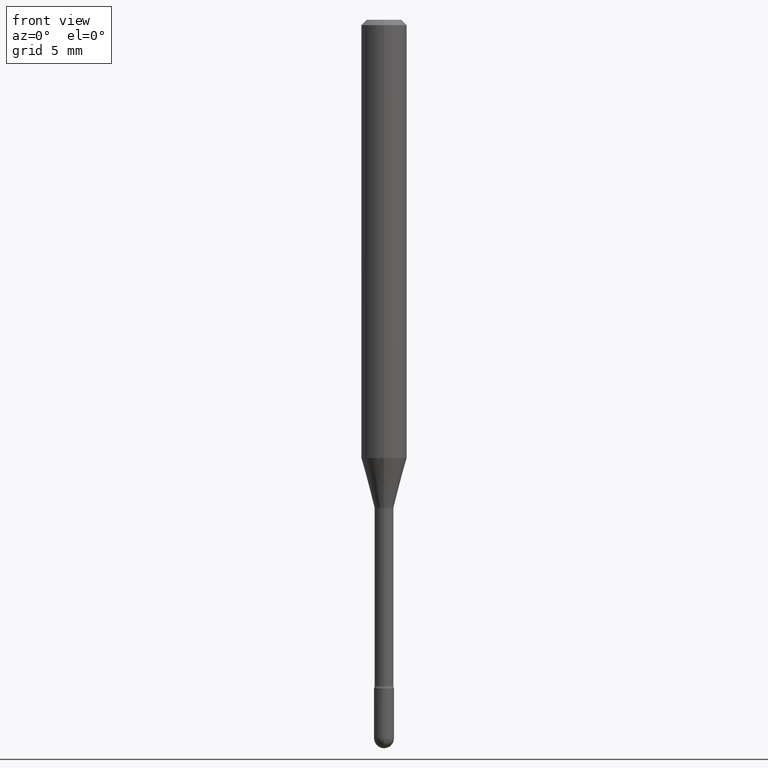
[diagram: clean part render]
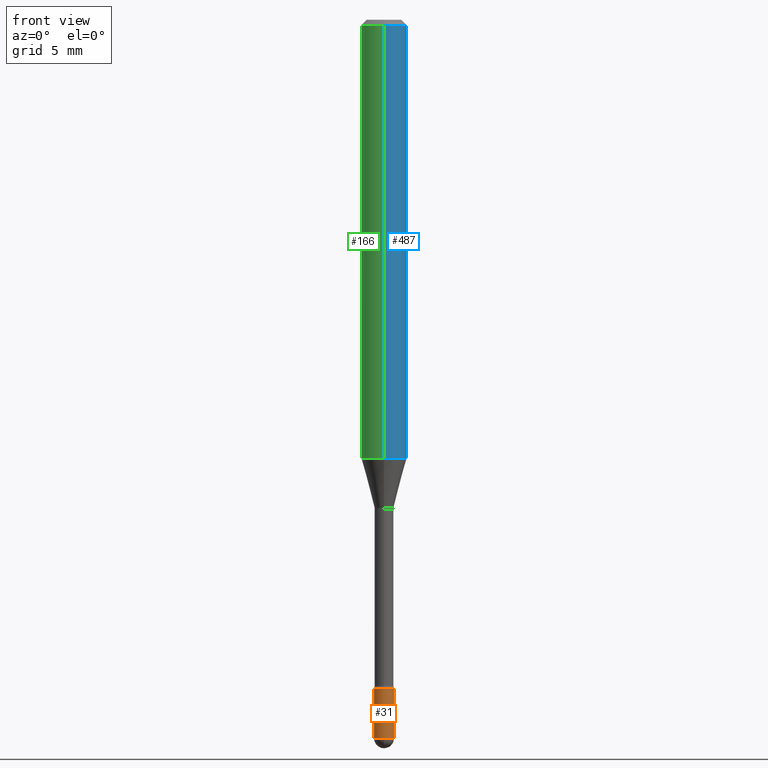
[diagram: same view with three faces highlighted in distinct colors, each labeled with its STEP entity id]
A machine part, front view with three faces highlighted in distinct colors.
Their STEP definitions:

[orange] entity #31 — the highlighted cylindrical surface (edge-blend (fillet) strip) has radius 0.6985 mm, axis along (-0, 0, 1).
#9 = CARTESIAN_POINT ( 'NONE',  ( 0.000000000000000000, 0.000000000000000000, 0.000000000000000000 ) ) ;
#11 = DIRECTION ( 'NONE',  ( -2.445468806185136597E-29, 3.491481338843145583E-15, 1.000000000000000000 ) ) ;
#20 = DIRECTION ( 'NONE',  ( -2.445468806185136597E-29, 3.491481338843145583E-15, 1.000000000000000000 ) ) ;
#31 = ADVANCED_FACE ( 'NONE', ( #299 ), #483, .T. ) ;
#44 = ORIENTED_EDGE ( 'NONE', *, *, #523, .F. ) ;
#58 = CIRCLE ( 'NONE', #371, 0.02750000000000000014 ) ;
#87 = CIRCLE ( 'NONE', #473, 0.02750000000000000014 ) ;
#88 = CARTESIAN_POINT ( 'NONE',  ( -0.02750000000000000014, -6.451508346488609804E-15, -1.972499999999999698 ) ) ;
#89 = VERTEX_POINT ( 'NONE', #108 ) ;
#98 = CARTESIAN_POINT ( 'NONE',  ( 0.02750000000000000014, -6.598899730413544603E-15, -1.834999999999999964 ) ) ;
#108 = CARTESIAN_POINT ( 'NONE',  ( -0.02750000000000000014, -6.451508346488609804E-15, -1.834999999999999964 ) ) ;
#112 = ORIENTED_EDGE ( 'NONE', *, *, #521, .T. ) ;
#116 = VECTOR ( 'NONE', #198, 39.37007874015748143 ) ;
#122 = EDGE_CURVE ( 'NONE', #251, #89, #448, .T. ) ;
#124 = CARTESIAN_POINT ( 'NONE',  ( 0.02750000000000000014, -6.838939072459010416E-15, -1.972499999999999698 ) ) ;
#136 = DIRECTION ( 'NONE',  ( 1.000000000000000000, -6.982962677686279332E-15, 0.000000000000000000 ) ) ;
#164 = ORIENTED_EDGE ( 'NONE', *, *, #122, .F. ) ;
#181 = DIRECTION ( 'NONE',  ( -2.445468806185136877E-29, 3.491481338843145188E-15, 1.000000000000000000 ) ) ;
#183 = DIRECTION ( 'NONE',  ( 1.000000000000000000, -6.982962677686279332E-15, 0.000000000000000000 ) ) ;
#198 = DIRECTION ( 'NONE',  ( -2.445468806185136877E-29, 3.491481338843145188E-15, 1.000000000000000000 ) ) ;
#244 = VECTOR ( 'NONE', #181, 39.37007874015748143 ) ;
#248 = ORIENTED_EDGE ( 'NONE', *, *, #509, .T. ) ;
#251 = VERTEX_POINT ( 'NONE', #88 ) ;
#255 = CARTESIAN_POINT ( 'NONE',  ( 0.02750000000000000014, -1.920314736363723444E-16, 1.340948613343882413E-30 ) ) ;
#262 = CARTESIAN_POINT ( 'NONE',  ( 4.823687220200181444E-29, -6.886946940868103736E-15, -1.972499999999999698 ) ) ;
#265 = DIRECTION ( 'NONE',  ( 1.000000000000000000, -6.982962677686266711E-15, 4.876176775795935793E-29 ) ) ;
#286 = VERTEX_POINT ( 'NONE', #98 ) ;
#299 = FACE_OUTER_BOUND ( 'NONE', #409, .T. ) ;
#301 = EDGE_CURVE ( 'NONE', #338, #286, #444, .T. ) ;
#306 = DIRECTION ( 'NONE',  ( -2.445468806185136597E-29, 3.491481338843145583E-15, 1.000000000000000000 ) ) ;
#332 = AXIS2_PLACEMENT_3D ( 'NONE', #9, #306, #265 ) ;
#338 = VERTEX_POINT ( 'NONE', #124 ) ;
#341 = ORIENTED_EDGE ( 'NONE', *, *, #301, .T. ) ;
#349 = CIRCLE ( 'NONE', #555, 0.02750000000000000014 ) ;
#371 = AXIS2_PLACEMENT_3D ( 'NONE', #388, #11, #183 ) ;
#388 = CARTESIAN_POINT ( 'NONE',  ( 4.487435259349726059E-29, -6.406868256777172111E-15, -1.834999999999999964 ) ) ;
#395 = CARTESIAN_POINT ( 'NONE',  ( -1.953992523339791111E-16, -0.02750000000000685924, -1.972499999999999698 ) ) ;
#396 = DIRECTION ( 'NONE',  ( 1.000000000000000000, -6.982962677686279332E-15, 0.000000000000000000 ) ) ;
#404 = CARTESIAN_POINT ( 'NONE',  ( 4.823687220200181444E-29, -6.886946940868103736E-15, -1.972499999999999698 ) ) ;
#409 = EDGE_LOOP ( 'NONE', ( #164, #112, #248, #341, #44 ) ) ;
#444 = LINE ( 'NONE', #255, #244 ) ;
#447 = VERTEX_POINT ( 'NONE', #395 ) ;
#448 = LINE ( 'NONE', #488, #116 ) ;
#473 = AXIS2_PLACEMENT_3D ( 'NONE', #262, #537, #136 ) ;
#483 = CYLINDRICAL_SURFACE ( 'NONE', #332, 0.02750000000000000014 ) ;
#488 = CARTESIAN_POINT ( 'NONE',  ( -0.02750000000000000014, 1.953992523340275521E-16, -1.352707149820099181E-30 ) ) ;
#509 = EDGE_CURVE ( 'NONE', #447, #338, #349, .T. ) ;
#521 = EDGE_CURVE ( 'NONE', #251, #447, #87, .T. ) ;
#523 = EDGE_CURVE ( 'NONE', #89, #286, #58, .T. ) ;
#537 = DIRECTION ( 'NONE',  ( -2.445468806185136597E-29, 3.491481338843145583E-15, 1.000000000000000000 ) ) ;
#555 = AXIS2_PLACEMENT_3D ( 'NONE', #404, #20, #396 ) ;

[blue] entity #487 — the highlighted cylindrical surface (edge-blend (fillet) strip) has radius 1.5875 mm, axis along (-0, 0, 1).
#7 = VERTEX_POINT ( 'NONE', #69 ) ;
#12 = AXIS2_PLACEMENT_3D ( 'NONE', #343, #539, #49 ) ;
#16 = CARTESIAN_POINT ( 'NONE',  ( 4.440892098500918040E-16, 0.06249999999999577421, -1.203220337902601189 ) ) ;
#41 = DIRECTION ( 'NONE',  ( -2.445426097641585595E-29, 3.491542499908329902E-15, 1.000000000000000000 ) ) ;
#46 = VERTEX_POINT ( 'NONE', #16 ) ;
#49 = DIRECTION ( 'NONE',  ( -6.982962677686265922E-15, -1.000000000000000000, 4.370956789862821150E-15 ) ) ;
#54 = DIRECTION ( 'NONE',  ( -2.445426097641585314E-29, 3.491542499908330296E-15, 1.000000000000000000 ) ) ;
#59 = EDGE_CURVE ( 'NONE', #7, #400, #143, .T. ) ;
#62 = CARTESIAN_POINT ( 'NONE',  ( -4.364351673553623336E-16, -0.06250000000000421885, -1.203220337902600745 ) ) ;
#69 = CARTESIAN_POINT ( 'NONE',  ( -4.364351673553912750E-16, -0.06250000000000005551, -0.01499999999999986587 ) ) ;
#93 = EDGE_LOOP ( 'NONE', ( #564, #428, #109, #276 ) ) ;
#104 = CARTESIAN_POINT ( 'NONE',  ( -4.364351673553916201E-16, -0.06250000000000000000, 6.962948051355166821E-16 ) ) ;
#109 = ORIENTED_EDGE ( 'NONE', *, *, #59, .F. ) ;
#119 = CARTESIAN_POINT ( 'NONE',  ( 3.668139146462398203E-31, -5.237313749862524657E-17, -0.01500000000000008271 ) ) ;
#137 = VERTEX_POINT ( 'NONE', #62 ) ;
#143 = CIRCLE ( 'NONE', #462, 0.06250000000000000000 ) ;
#144 = VECTOR ( 'NONE', #309, 39.37007874015748143 ) ;
#222 = DIRECTION ( 'NONE',  ( -6.982962677686265922E-15, -1.000000000000000000, 3.491542499908329507E-15 ) ) ;
#229 = CYLINDRICAL_SURFACE ( 'NONE', #293, 0.06250000000000000000 ) ;
#276 = ORIENTED_EDGE ( 'NONE', *, *, #477, .F. ) ;
#284 = DIRECTION ( 'NONE',  ( -6.982962677686265922E-15, -1.000000000000000000, 3.483106191921935554E-15 ) ) ;
#293 = AXIS2_PLACEMENT_3D ( 'NONE', #481, #54, #222 ) ;
#303 = VECTOR ( 'NONE', #41, 39.37007874015748143 ) ;
#309 = DIRECTION ( 'NONE',  ( -2.445426097641585595E-29, 3.491542499908329902E-15, 1.000000000000000000 ) ) ;
#335 = CARTESIAN_POINT ( 'NONE',  ( 4.440892098500625669E-16, 0.06250000000000000000, 2.598519926469753951E-16 ) ) ;
#343 = CARTESIAN_POINT ( 'NONE',  ( 2.942386415520147036E-29, -4.201094946540992932E-15, -1.203220337902600967 ) ) ;
#400 = VERTEX_POINT ( 'NONE', #421 ) ;
#421 = CARTESIAN_POINT ( 'NONE',  ( 4.440892098500920998E-16, 0.06249999999999993755, -0.01500000000000030129 ) ) ;
#423 = LINE ( 'NONE', #335, #303 ) ;
#426 = CIRCLE ( 'NONE', #12, 0.06250000000000000000 ) ;
#428 = ORIENTED_EDGE ( 'NONE', *, *, #458, .T. ) ;
#442 = FACE_OUTER_BOUND ( 'NONE', #93, .T. ) ;
#458 = EDGE_CURVE ( 'NONE', #46, #400, #423, .T. ) ;
#462 = AXIS2_PLACEMENT_3D ( 'NONE', #119, #502, #284 ) ;
#477 = EDGE_CURVE ( 'NONE', #137, #7, #491, .T. ) ;
#481 = CARTESIAN_POINT ( 'NONE',  ( -1.169113584055446105E-44, 1.669184350826100908E-30, 4.780733988912460139E-16 ) ) ;
#487 = ADVANCED_FACE ( 'NONE', ( #442 ), #229, .T. ) ;
#491 = LINE ( 'NONE', #104, #144 ) ;
#502 = DIRECTION ( 'NONE',  ( -2.445426097641585314E-29, 3.491542499908330296E-15, 1.000000000000000000 ) ) ;
#517 = EDGE_CURVE ( 'NONE', #137, #46, #426, .T. ) ;
#539 = DIRECTION ( 'NONE',  ( -2.445426097641585314E-29, 3.491542499908330296E-15, 1.000000000000000000 ) ) ;
#564 = ORIENTED_EDGE ( 'NONE', *, *, #517, .T. ) ;

[green] entity #166 — the highlighted cylindrical surface (edge-blend (fillet) strip) has radius 1.5875 mm, axis along (-0, 0, 1).
#7 = VERTEX_POINT ( 'NONE', #69 ) ;
#13 = FACE_OUTER_BOUND ( 'NONE', #530, .T. ) ;
#16 = CARTESIAN_POINT ( 'NONE',  ( 4.440892098500918040E-16, 0.06249999999999577421, -1.203220337902601189 ) ) ;
#41 = DIRECTION ( 'NONE',  ( -2.445426097641585595E-29, 3.491542499908329902E-15, 1.000000000000000000 ) ) ;
#46 = VERTEX_POINT ( 'NONE', #16 ) ;
#60 = DIRECTION ( 'NONE',  ( -2.445426097641585314E-29, 3.491542499908330296E-15, 1.000000000000000000 ) ) ;
#62 = CARTESIAN_POINT ( 'NONE',  ( -4.364351673553623336E-16, -0.06250000000000421885, -1.203220337902600745 ) ) ;
#69 = CARTESIAN_POINT ( 'NONE',  ( -4.364351673553912750E-16, -0.06250000000000005551, -0.01499999999999986587 ) ) ;
#104 = CARTESIAN_POINT ( 'NONE',  ( -4.364351673553916201E-16, -0.06250000000000000000, 6.962948051355166821E-16 ) ) ;
#130 = ORIENTED_EDGE ( 'NONE', *, *, #433, .F. ) ;
#131 = DIRECTION ( 'NONE',  ( -2.445426097641585314E-29, 3.491542499908330296E-15, 1.000000000000000000 ) ) ;
#137 = VERTEX_POINT ( 'NONE', #62 ) ;
#144 = VECTOR ( 'NONE', #309, 39.37007874015748143 ) ;
#166 = ADVANCED_FACE ( 'NONE', ( #13 ), #410, .T. ) ;
#247 = AXIS2_PLACEMENT_3D ( 'NONE', #277, #60, #266 ) ;
#249 = CIRCLE ( 'NONE', #282, 0.06250000000000000000 ) ;
#253 = DIRECTION ( 'NONE',  ( -6.982962677686265922E-15, -1.000000000000000000, 3.483106191921935554E-15 ) ) ;
#266 = DIRECTION ( 'NONE',  ( -6.982962677686265922E-15, -1.000000000000000000, 3.491542499908329507E-15 ) ) ;
#270 = DIRECTION ( 'NONE',  ( -6.982962677686265922E-15, -1.000000000000000000, 4.370956789862821150E-15 ) ) ;
#277 = CARTESIAN_POINT ( 'NONE',  ( -1.169113584055446105E-44, 1.669184350826100908E-30, 4.780733988912460139E-16 ) ) ;
#282 = AXIS2_PLACEMENT_3D ( 'NONE', #369, #540, #270 ) ;
#303 = VECTOR ( 'NONE', #41, 39.37007874015748143 ) ;
#309 = DIRECTION ( 'NONE',  ( -2.445426097641585595E-29, 3.491542499908329902E-15, 1.000000000000000000 ) ) ;
#310 = EDGE_CURVE ( 'NONE', #46, #137, #249, .T. ) ;
#335 = CARTESIAN_POINT ( 'NONE',  ( 4.440892098500625669E-16, 0.06250000000000000000, 2.598519926469753951E-16 ) ) ;
#336 = ORIENTED_EDGE ( 'NONE', *, *, #310, .T. ) ;
#337 = CARTESIAN_POINT ( 'NONE',  ( 3.668139146462398203E-31, -5.237313749862524657E-17, -0.01500000000000008271 ) ) ;
#369 = CARTESIAN_POINT ( 'NONE',  ( 2.942386415520147036E-29, -4.201094946540992932E-15, -1.203220337902600967 ) ) ;
#400 = VERTEX_POINT ( 'NONE', #421 ) ;
#410 = CYLINDRICAL_SURFACE ( 'NONE', #247, 0.06250000000000000000 ) ;
#421 = CARTESIAN_POINT ( 'NONE',  ( 4.440892098500920998E-16, 0.06249999999999993755, -0.01500000000000030129 ) ) ;
#423 = LINE ( 'NONE', #335, #303 ) ;
#433 = EDGE_CURVE ( 'NONE', #400, #7, #514, .T. ) ;
#438 = AXIS2_PLACEMENT_3D ( 'NONE', #337, #131, #253 ) ;
#458 = EDGE_CURVE ( 'NONE', #46, #400, #423, .T. ) ;
#477 = EDGE_CURVE ( 'NONE', #137, #7, #491, .T. ) ;
#480 = ORIENTED_EDGE ( 'NONE', *, *, #458, .F. ) ;
#491 = LINE ( 'NONE', #104, #144 ) ;
#514 = CIRCLE ( 'NONE', #438, 0.06250000000000000000 ) ;
#522 = ORIENTED_EDGE ( 'NONE', *, *, #477, .T. ) ;
#530 = EDGE_LOOP ( 'NONE', ( #480, #336, #522, #130 ) ) ;
#540 = DIRECTION ( 'NONE',  ( -2.445426097641585314E-29, 3.491542499908330296E-15, 1.000000000000000000 ) ) ;